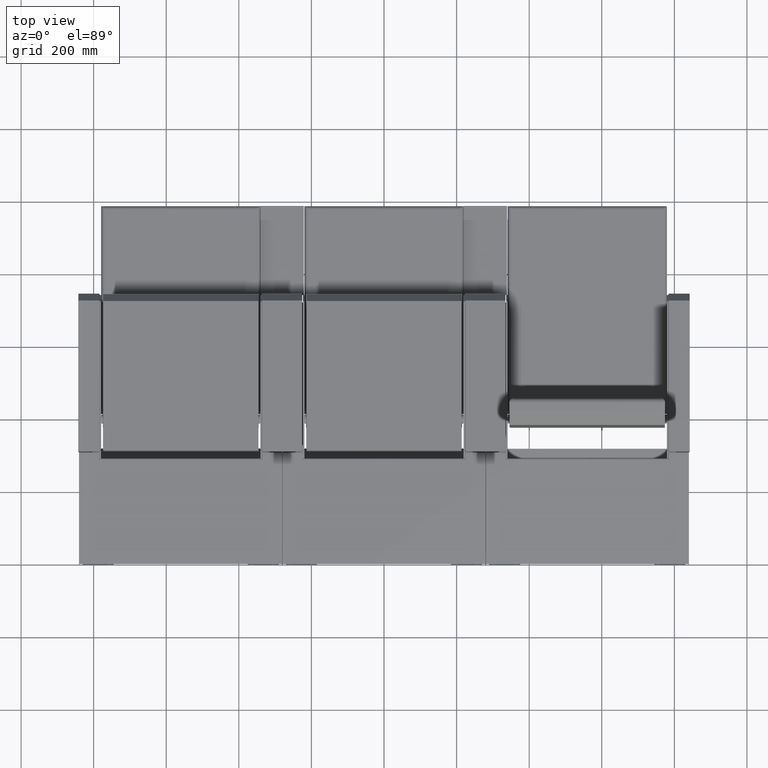
[diagram: clean part render]
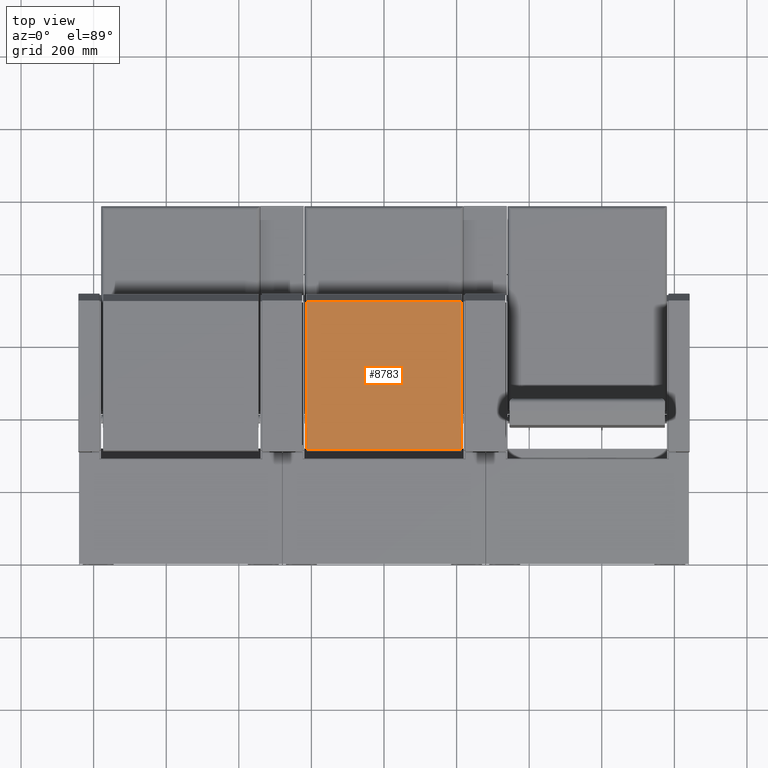
[diagram: same view with one face highlighted and labeled with its STEP entity id]
A machine part, top view. The second image highlights one B-rep face of the part: STEP entity #8783.
In plain terms, the highlighted planar face has unit normal (0, -0.0872, -0.9962).
Its self-contained STEP definition (entity closure, byte-faithful):
#1074 = EDGE_LOOP ( 'NONE', ( #1266, #1102, #1375, #1374 ) ) ;
#1102 = ORIENTED_EDGE ( 'NONE', *, *, #6846, .T. ) ;
#1266 = ORIENTED_EDGE ( 'NONE', *, *, #6830, .T. ) ;
#1374 = ORIENTED_EDGE ( 'NONE', *, *, #6844, .T. ) ;
#1375 = ORIENTED_EDGE ( 'NONE', *, *, #6849, .T. ) ;
#4027 = CARTESIAN_POINT ( 'NONE',  ( 214.0000000000000000, -21.99999999999998900, -87.00000000000000000 ) ) ;
#4028 = DIRECTION ( 'NONE',  ( 1.000000000000000000, -0.0000000000000000000, -0.0000000000000000000 ) ) ;
#4059 = CARTESIAN_POINT ( 'NONE',  ( -212.0000000000000000, -21.99999999999998900, -89.00000000000000000 ) ) ;
#4060 = DIRECTION ( 'NONE',  ( 0.0000000000000000000, 1.255923277977377400E-016, -1.000000000000000000 ) ) ;
#4063 = CARTESIAN_POINT ( 'NONE',  ( 212.0000000000000000, -22.00000000000003900, 325.3700908475528300 ) ) ;
#4064 = DIRECTION ( 'NONE',  ( -0.0000000000000000000, -1.255923277977377400E-016, 1.000000000000000000 ) ) ;
#4069 = CARTESIAN_POINT ( 'NONE',  ( 214.0000000000000000, -22.00000000000003900, 324.2153903091735900 ) ) ;
#4070 = DIRECTION ( 'NONE',  ( -1.000000000000000000, 0.0000000000000000000, 0.0000000000000000000 ) ) ;
#4180 = PLANE ( 'NONE',  #4587 ) ;
#4181 = CARTESIAN_POINT ( 'NONE',  ( 214.0000000000000000, -21.99999999999998900, -89.00000000000000000 ) ) ;
#4193 = DIRECTION ( 'NONE',  ( -0.0000000000000000000, 1.000000000000000000, 1.255923277977377400E-016 ) ) ;
#4194 = DIRECTION ( 'NONE',  ( 0.0000000000000000000, -1.255923277977377400E-016, 1.000000000000000000 ) ) ;
#4587 = AXIS2_PLACEMENT_3D ( 'NONE', #4181, #4193, #4194 ) ;
#5549 = LINE ( 'NONE', #4027, #5552 ) ;
#5552 = VECTOR ( 'NONE', #4028, 1000.000000000000000 ) ;
#5573 = LINE ( 'NONE', #4059, #5576 ) ;
#5576 = VECTOR ( 'NONE', #4060, 1000.000000000000000 ) ;
#5577 = LINE ( 'NONE', #4063, #5580 ) ;
#5580 = VECTOR ( 'NONE', #4064, 1000.000000000000000 ) ;
#5583 = LINE ( 'NONE', #4069, #5586 ) ;
#5586 = VECTOR ( 'NONE', #4070, 1000.000000000000000 ) ;
#5956 = FACE_OUTER_BOUND ( 'NONE', #1074, .T. ) ;
#6830 = EDGE_CURVE ( 'NONE', #9948, #9747, #5549, .T. ) ;
#6844 = EDGE_CURVE ( 'NONE', #9753, #9948, #5573, .T. ) ;
#6846 = EDGE_CURVE ( 'NONE', #9747, #9746, #5577, .T. ) ;
#6849 = EDGE_CURVE ( 'NONE', #9746, #9753, #5583, .T. ) ;
#7966 = CARTESIAN_POINT ( 'NONE',  ( 212.0000000000000000, -22.00000000000003900, 324.2153903091735900 ) ) ;
#7967 = CARTESIAN_POINT ( 'NONE',  ( 212.0000000000000000, -21.99999999999998900, -87.00000000000000000 ) ) ;
#7973 = CARTESIAN_POINT ( 'NONE',  ( -212.0000000000000000, -22.00000000000003900, 324.2153903091735900 ) ) ;
#8163 = CARTESIAN_POINT ( 'NONE',  ( -212.0000000000000000, -21.99999999999998900, -87.00000000000000000 ) ) ;
#8783 = ADVANCED_FACE ( 'NONE', ( #5956 ), #4180, .F. ) ;
#9746 = VERTEX_POINT ( 'NONE', #7966 ) ;
#9747 = VERTEX_POINT ( 'NONE', #7967 ) ;
#9753 = VERTEX_POINT ( 'NONE', #7973 ) ;
#9948 = VERTEX_POINT ( 'NONE', #8163 ) ;